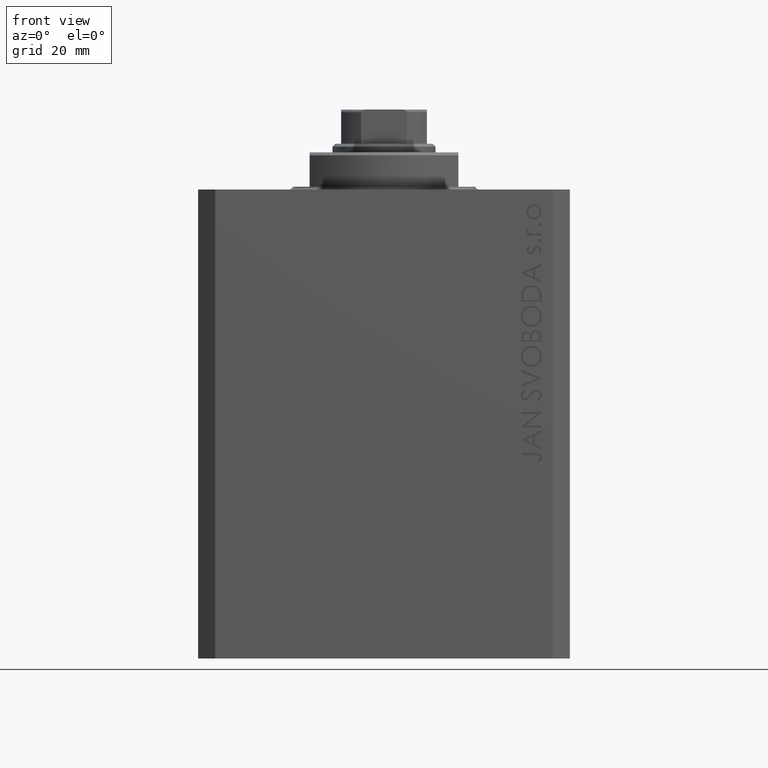
[diagram: clean part render]
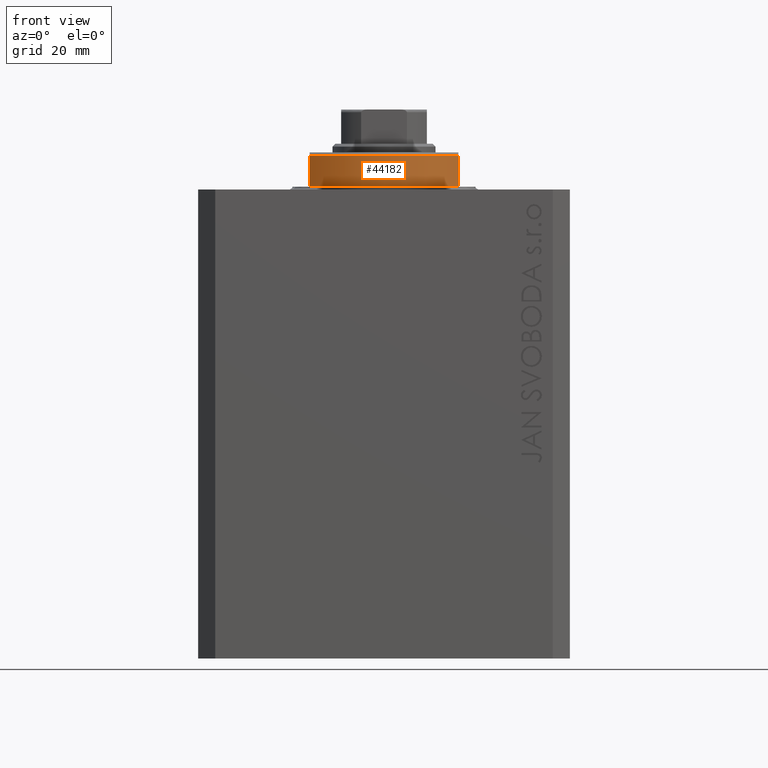
[diagram: same view with one face highlighted and labeled with its STEP entity id]
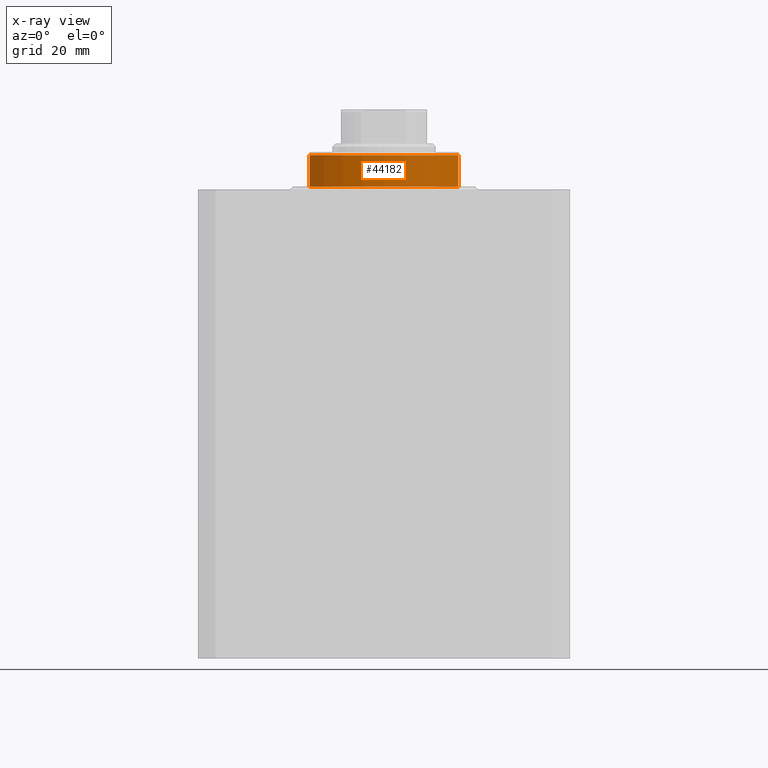
[diagram: x-ray of the same camera — body ghosted, the highlighted face saturated]
A machine part, front view. The second image highlights one B-rep face of the part: STEP entity #44182.
The next image is the same camera in x-ray: the body ghosted, the highlighted face saturated — about 0% of this face is hidden behind the body in this view.
In plain terms, the highlighted cylindrical surface (partial cylindrical patch) has radius 16 mm, axis along (0, 0, -1).
Its self-contained STEP definition (entity closure, byte-faithful):
#609 = CARTESIAN_POINT ( 'NONE',  ( 0.000000000000000000, 0.000000000000000000, -6.500000000000000000 ) ) ;
#1563 = DIRECTION ( 'NONE',  ( 1.000000000000000000, 0.000000000000000000, 0.000000000000000000 ) ) ;
#1801 = CARTESIAN_POINT ( 'NONE',  ( 0.000000000000000000, 0.000000000000000000, -0.4999999999999995559 ) ) ;
#2382 = DIRECTION ( 'NONE',  ( 0.000000000000000000, 0.000000000000000000, 1.000000000000000000 ) ) ;
#4198 = CIRCLE ( 'NONE', #9544, 16.00000000000000000 ) ;
#4416 = VERTEX_POINT ( 'NONE', #6168 ) ;
#6168 = CARTESIAN_POINT ( 'NONE',  ( -13.00000000000000000, -9.327379053088815652, -6.000000000000023981 ) ) ;
#6684 = DIRECTION ( 'NONE',  ( -1.000000000000000000, 0.000000000000000000, 0.000000000000000000 ) ) ;
#8206 = CIRCLE ( 'NONE', #39441, 16.00000000000000000 ) ;
#9544 = AXIS2_PLACEMENT_3D ( 'NONE', #24330, #2382, #6684 ) ;
#12345 = CARTESIAN_POINT ( 'NONE',  ( -13.00000000000000000, -9.327379053088815652, -0.4999999999999995559 ) ) ;
#13081 = VERTEX_POINT ( 'NONE', #12345 ) ;
#15100 = ORIENTED_EDGE ( 'NONE', *, *, #40374, .T. ) ;
#15153 = LINE ( 'NONE', #46897, #35384 ) ;
#15599 = CARTESIAN_POINT ( 'NONE',  ( 13.00000000000000000, -9.327379053088815652, -0.4999999999999995559 ) ) ;
#16860 = EDGE_CURVE ( 'NONE', #13081, #4416, #44286, .T. ) ;
#19198 = VERTEX_POINT ( 'NONE', #15599 ) ;
#19316 = EDGE_LOOP ( 'NONE', ( #24725, #29330, #29229, #15100 ) ) ;
#19712 = DIRECTION ( 'NONE',  ( -0.000000000000000000, -0.000000000000000000, -1.000000000000000000 ) ) ;
#23275 = CYLINDRICAL_SURFACE ( 'NONE', #45446, 16.00000000000000000 ) ;
#24330 = CARTESIAN_POINT ( 'NONE',  ( 0.000000000000000000, 0.000000000000000000, -6.000000000000023981 ) ) ;
#24725 = ORIENTED_EDGE ( 'NONE', *, *, #38358, .F. ) ;
#24996 = EDGE_CURVE ( 'NONE', #19198, #13081, #8206, .T. ) ;
#25695 = DIRECTION ( 'NONE',  ( 0.000000000000000000, 0.000000000000000000, -1.000000000000000000 ) ) ;
#26015 = CARTESIAN_POINT ( 'NONE',  ( 13.00000000000000000, -9.327379053088815652, -6.000000000000023981 ) ) ;
#26371 = FACE_OUTER_BOUND ( 'NONE', #19316, .T. ) ;
#26838 = DIRECTION ( 'NONE',  ( -0.000000000000000000, -0.000000000000000000, 1.000000000000000000 ) ) ;
#27921 = VECTOR ( 'NONE', #25695, 1000.000000000000000 ) ;
#29229 = ORIENTED_EDGE ( 'NONE', *, *, #16860, .T. ) ;
#29330 = ORIENTED_EDGE ( 'NONE', *, *, #24996, .T. ) ;
#33276 = DIRECTION ( 'NONE',  ( 0.000000000000000000, 0.000000000000000000, -1.000000000000000000 ) ) ;
#35384 = VECTOR ( 'NONE', #33276, 1000.000000000000000 ) ;
#35947 = CARTESIAN_POINT ( 'NONE',  ( -13.00000000000000000, -9.327379053088813876, -6.500000000000000000 ) ) ;
#38358 = EDGE_CURVE ( 'NONE', #19198, #43479, #15153, .T. ) ;
#39441 = AXIS2_PLACEMENT_3D ( 'NONE', #1801, #19712, #1563 ) ;
#40374 = EDGE_CURVE ( 'NONE', #4416, #43479, #4198, .T. ) ;
#40449 = DIRECTION ( 'NONE',  ( 1.000000000000000000, 0.000000000000000000, 0.000000000000000000 ) ) ;
#43479 = VERTEX_POINT ( 'NONE', #26015 ) ;
#44182 = ADVANCED_FACE ( 'NONE', ( #26371 ), #23275, .T. ) ;
#44286 = LINE ( 'NONE', #35947, #27921 ) ;
#45446 = AXIS2_PLACEMENT_3D ( 'NONE', #609, #26838, #40449 ) ;
#46897 = CARTESIAN_POINT ( 'NONE',  ( 13.00000000000000000, -9.327379053088813876, -6.500000000000000000 ) ) ;